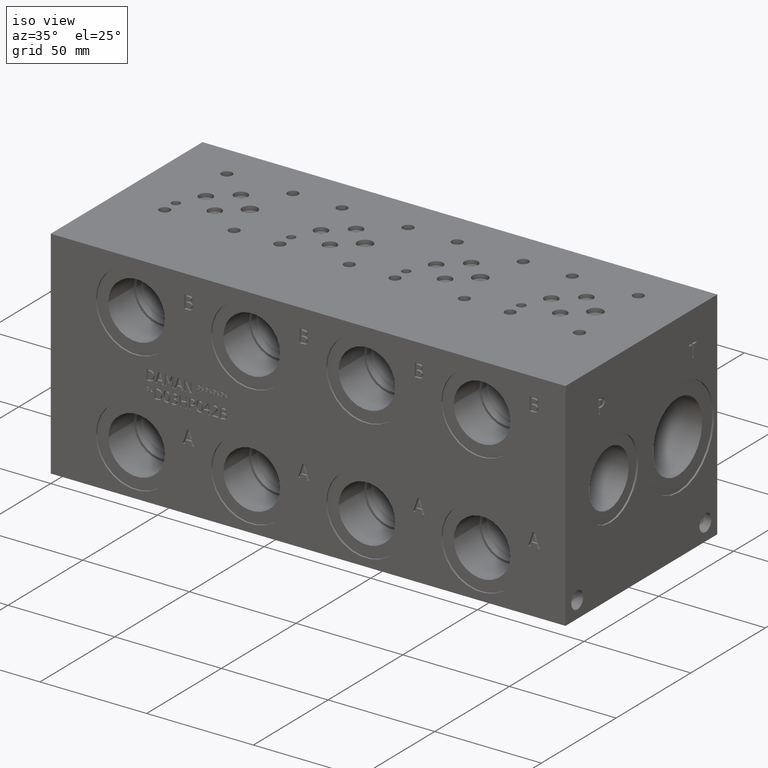
[diagram: clean part render]
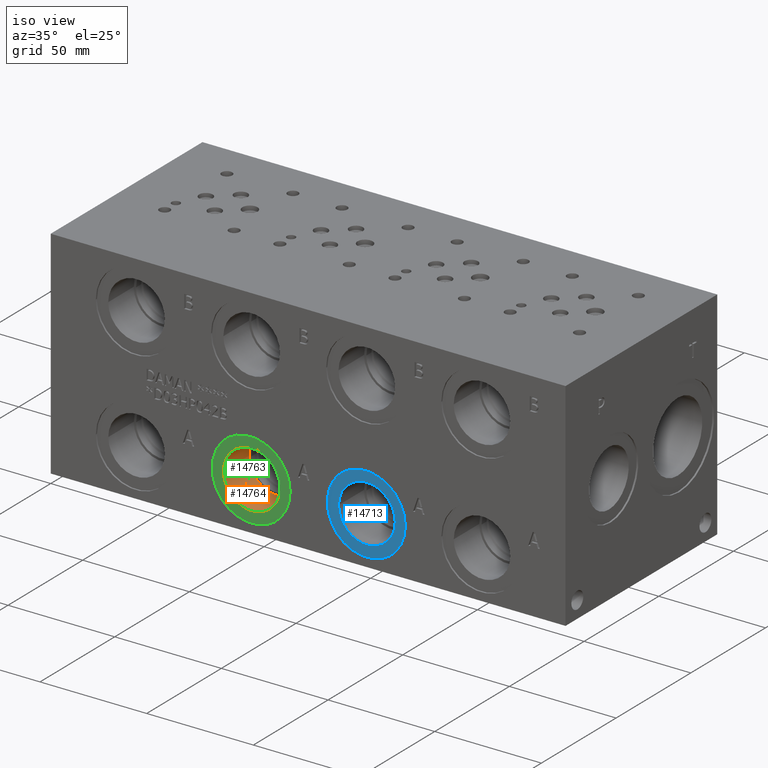
[diagram: same view with three faces highlighted in distinct colors, each labeled with its STEP entity id]
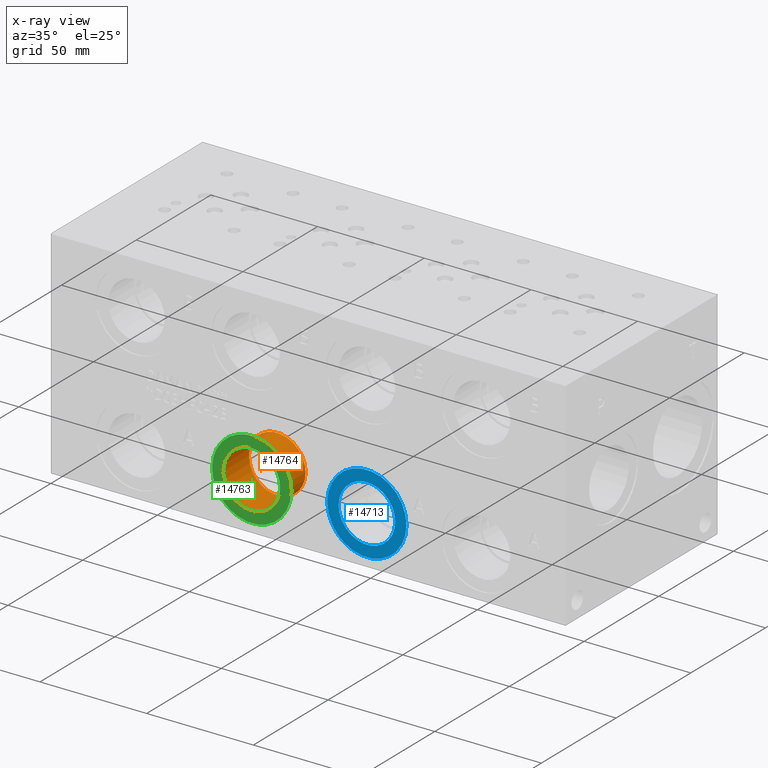
[diagram: x-ray of the same camera — body ghosted, the three highlighted faces saturated]
A machine part, iso view with three faces highlighted in distinct colors.
The next image is the same camera in x-ray (body ghosted, the three faces saturated) — at least one of them is partly hidden behind the body in this view.
Their STEP definitions:

[orange] entity #14764 — the highlighted cylindrical surface (bore or boss wall) has radius 13.2715 mm, axis along (0, 1, 0).
#114=CYLINDRICAL_SURFACE('',#15522,13.2715);
#494=CIRCLE('',#15520,13.2715);
#495=CIRCLE('',#15521,13.2715);
#496=CIRCLE('',#15523,13.2715);
#497=CIRCLE('',#15524,13.2715);
#1857=FACE_OUTER_BOUND('',#2715,.T.);
#2715=EDGE_LOOP('',(#12345,#12346,#12347,#12348,#12349,#12350));
#4128=LINE('',#24844,#5447);
#5447=VECTOR('',#18310,13.2715);
#6704=VERTEX_POINT('',#24838);
#6705=VERTEX_POINT('',#24839);
#6706=VERTEX_POINT('',#24843);
#6707=VERTEX_POINT('',#24845);
#8676=EDGE_CURVE('',#6704,#6705,#494,.T.);
#8677=EDGE_CURVE('',#6705,#6704,#495,.T.);
#8678=EDGE_CURVE('',#6705,#6706,#4128,.T.);
#8679=EDGE_CURVE('',#6706,#6707,#496,.T.);
#8680=EDGE_CURVE('',#6707,#6706,#497,.T.);
#12345=ORIENTED_EDGE('',*,*,#8676,.F.);
#12346=ORIENTED_EDGE('',*,*,#8677,.F.);
#12347=ORIENTED_EDGE('',*,*,#8678,.T.);
#12348=ORIENTED_EDGE('',*,*,#8679,.T.);
#12349=ORIENTED_EDGE('',*,*,#8680,.T.);
#12350=ORIENTED_EDGE('',*,*,#8678,.F.);
#14764=ADVANCED_FACE('',(#1857),#114,.F.);
#15520=AXIS2_PLACEMENT_3D('',#24840,#18304,#18305);
#15521=AXIS2_PLACEMENT_3D('',#24841,#18306,#18307);
#15522=AXIS2_PLACEMENT_3D('',#24842,#18308,#18309);
#15523=AXIS2_PLACEMENT_3D('',#24846,#18311,#18312);
#15524=AXIS2_PLACEMENT_3D('',#24847,#18313,#18314);
#18304=DIRECTION('center_axis',(0.,1.,0.));
#18305=DIRECTION('ref_axis',(1.,0.,0.));
#18306=DIRECTION('center_axis',(0.,1.,0.));
#18307=DIRECTION('ref_axis',(1.,0.,0.));
#18308=DIRECTION('center_axis',(0.,1.,0.));
#18309=DIRECTION('ref_axis',(1.,0.,0.));
#18310=DIRECTION('',(0.,1.,0.));
#18311=DIRECTION('center_axis',(0.,1.,0.));
#18312=DIRECTION('ref_axis',(1.,0.,0.));
#18313=DIRECTION('center_axis',(0.,1.,0.));
#18314=DIRECTION('ref_axis',(1.,0.,0.));
#24838=CARTESIAN_POINT('',(106.9467,0.7874,22.225));
#24839=CARTESIAN_POINT('',(80.4037,0.7874,22.225));
#24840=CARTESIAN_POINT('Origin',(93.6752,0.7874,22.225));
#24841=CARTESIAN_POINT('Origin',(93.6752,0.7874,22.225));
#24842=CARTESIAN_POINT('Origin',(93.6752,9.3345,22.225));
#24843=CARTESIAN_POINT('',(80.4037,17.8816,22.225));
#24844=CARTESIAN_POINT('',(80.4037,9.3345,22.225));
#24845=CARTESIAN_POINT('',(106.9467,17.8816,22.225));
#24846=CARTESIAN_POINT('Origin',(93.6752,17.8816,22.225));
#24847=CARTESIAN_POINT('Origin',(93.6752,17.8816,22.225));

[blue] entity #14713 — the highlighted planar face has unit normal (0, 1, 0).
#412=CIRCLE('',#15387,18.5547);
#413=CIRCLE('',#15388,18.5547);
#414=CIRCLE('',#15390,13.2715);
#415=CIRCLE('',#15391,13.2715);
#1177=FACE_BOUND('',#2652,.T.);
#1806=FACE_OUTER_BOUND('',#2651,.T.);
#2651=EDGE_LOOP('',(#12092,#12093));
#2652=EDGE_LOOP('',(#12094,#12095));
#6614=VERTEX_POINT('',#24576);
#6615=VERTEX_POINT('',#24578);
#6616=VERTEX_POINT('',#24582);
#6617=VERTEX_POINT('',#24583);
#8556=EDGE_CURVE('',#6614,#6615,#412,.T.);
#8557=EDGE_CURVE('',#6615,#6614,#413,.T.);
#8558=EDGE_CURVE('',#6616,#6617,#414,.T.);
#8559=EDGE_CURVE('',#6617,#6616,#415,.T.);
#12092=ORIENTED_EDGE('',*,*,#8557,.F.);
#12093=ORIENTED_EDGE('',*,*,#8556,.F.);
#12094=ORIENTED_EDGE('',*,*,#8558,.T.);
#12095=ORIENTED_EDGE('',*,*,#8559,.T.);
#13597=PLANE('',#15389);
#14713=ADVANCED_FACE('',(#1806,#1177),#13597,.F.);
#15387=AXIS2_PLACEMENT_3D('',#24579,#18000,#18001);
#15388=AXIS2_PLACEMENT_3D('',#24580,#18002,#18003);
#15389=AXIS2_PLACEMENT_3D('',#24581,#18004,#18005);
#15390=AXIS2_PLACEMENT_3D('',#24584,#18006,#18007);
#15391=AXIS2_PLACEMENT_3D('',#24585,#18008,#18009);
#18000=DIRECTION('center_axis',(0.,1.,0.));
#18001=DIRECTION('ref_axis',(1.,0.,0.));
#18002=DIRECTION('center_axis',(0.,1.,0.));
#18003=DIRECTION('ref_axis',(1.,0.,0.));
#18004=DIRECTION('center_axis',(0.,1.,0.));
#18005=DIRECTION('ref_axis',(0.,0.,1.));
#18006=DIRECTION('center_axis',(0.,1.,0.));
#18007=DIRECTION('ref_axis',(1.,0.,0.));
#18008=DIRECTION('center_axis',(0.,1.,0.));
#18009=DIRECTION('ref_axis',(1.,0.,0.));
#24576=CARTESIAN_POINT('',(129.0955,0.7874,22.225));
#24578=CARTESIAN_POINT('',(166.2049,0.7874,22.225));
#24579=CARTESIAN_POINT('Origin',(147.6502,0.7874,22.225));
#24580=CARTESIAN_POINT('Origin',(147.6502,0.7874,22.225));
#24581=CARTESIAN_POINT('Origin',(160.9217,0.7874,22.225));
#24582=CARTESIAN_POINT('',(160.9217,0.7874,22.225));
#24583=CARTESIAN_POINT('',(134.3787,0.7874,22.225));
#24584=CARTESIAN_POINT('Origin',(147.6502,0.7874,22.225));
#24585=CARTESIAN_POINT('Origin',(147.6502,0.7874,22.225));

[green] entity #14763 — the highlighted planar face has unit normal (0, 1, 0).
#492=CIRCLE('',#15517,18.5547);
#493=CIRCLE('',#15518,18.5547);
#494=CIRCLE('',#15520,13.2715);
#495=CIRCLE('',#15521,13.2715);
#1189=FACE_BOUND('',#2714,.T.);
#1856=FACE_OUTER_BOUND('',#2713,.T.);
#2713=EDGE_LOOP('',(#12341,#12342));
#2714=EDGE_LOOP('',(#12343,#12344));
#6702=VERTEX_POINT('',#24832);
#6703=VERTEX_POINT('',#24834);
#6704=VERTEX_POINT('',#24838);
#6705=VERTEX_POINT('',#24839);
#8674=EDGE_CURVE('',#6702,#6703,#492,.T.);
#8675=EDGE_CURVE('',#6703,#6702,#493,.T.);
#8676=EDGE_CURVE('',#6704,#6705,#494,.T.);
#8677=EDGE_CURVE('',#6705,#6704,#495,.T.);
#12341=ORIENTED_EDGE('',*,*,#8675,.F.);
#12342=ORIENTED_EDGE('',*,*,#8674,.F.);
#12343=ORIENTED_EDGE('',*,*,#8676,.T.);
#12344=ORIENTED_EDGE('',*,*,#8677,.T.);
#13609=PLANE('',#15519);
#14763=ADVANCED_FACE('',(#1856,#1189),#13609,.F.);
#15517=AXIS2_PLACEMENT_3D('',#24835,#18298,#18299);
#15518=AXIS2_PLACEMENT_3D('',#24836,#18300,#18301);
#15519=AXIS2_PLACEMENT_3D('',#24837,#18302,#18303);
#15520=AXIS2_PLACEMENT_3D('',#24840,#18304,#18305);
#15521=AXIS2_PLACEMENT_3D('',#24841,#18306,#18307);
#18298=DIRECTION('center_axis',(0.,1.,0.));
#18299=DIRECTION('ref_axis',(1.,0.,0.));
#18300=DIRECTION('center_axis',(0.,1.,0.));
#18301=DIRECTION('ref_axis',(1.,0.,0.));
#18302=DIRECTION('center_axis',(0.,1.,0.));
#18303=DIRECTION('ref_axis',(0.,0.,1.));
#18304=DIRECTION('center_axis',(0.,1.,0.));
#18305=DIRECTION('ref_axis',(1.,0.,0.));
#18306=DIRECTION('center_axis',(0.,1.,0.));
#18307=DIRECTION('ref_axis',(1.,0.,0.));
#24832=CARTESIAN_POINT('',(75.1205,0.7874,22.225));
#24834=CARTESIAN_POINT('',(112.2299,0.7874,22.225));
#24835=CARTESIAN_POINT('Origin',(93.6752,0.7874,22.225));
#24836=CARTESIAN_POINT('Origin',(93.6752,0.7874,22.225));
#24837=CARTESIAN_POINT('Origin',(106.9467,0.7874,22.225));
#24838=CARTESIAN_POINT('',(106.9467,0.7874,22.225));
#24839=CARTESIAN_POINT('',(80.4037,0.7874,22.225));
#24840=CARTESIAN_POINT('Origin',(93.6752,0.7874,22.225));
#24841=CARTESIAN_POINT('Origin',(93.6752,0.7874,22.225));